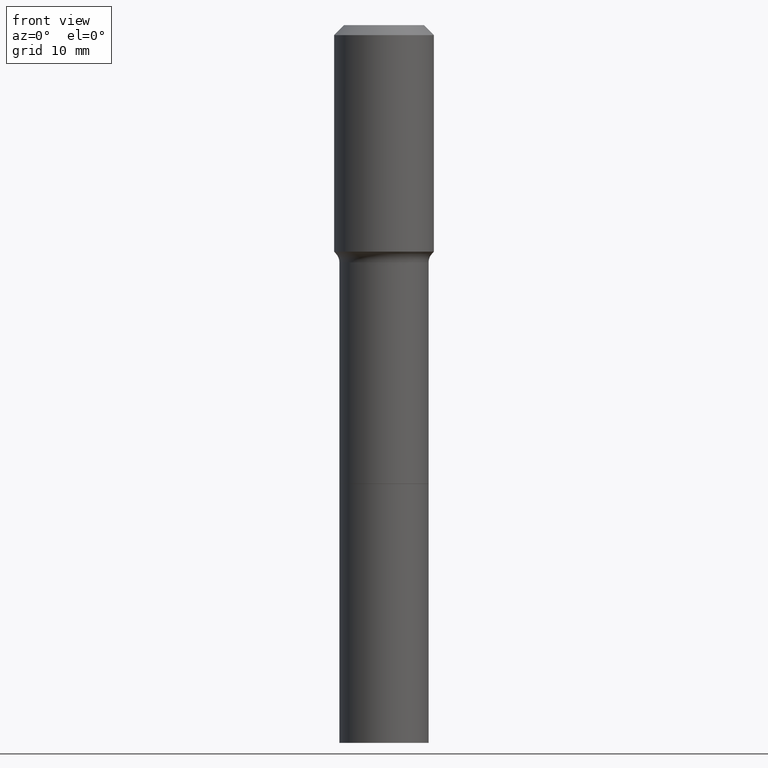
[diagram: clean part render]
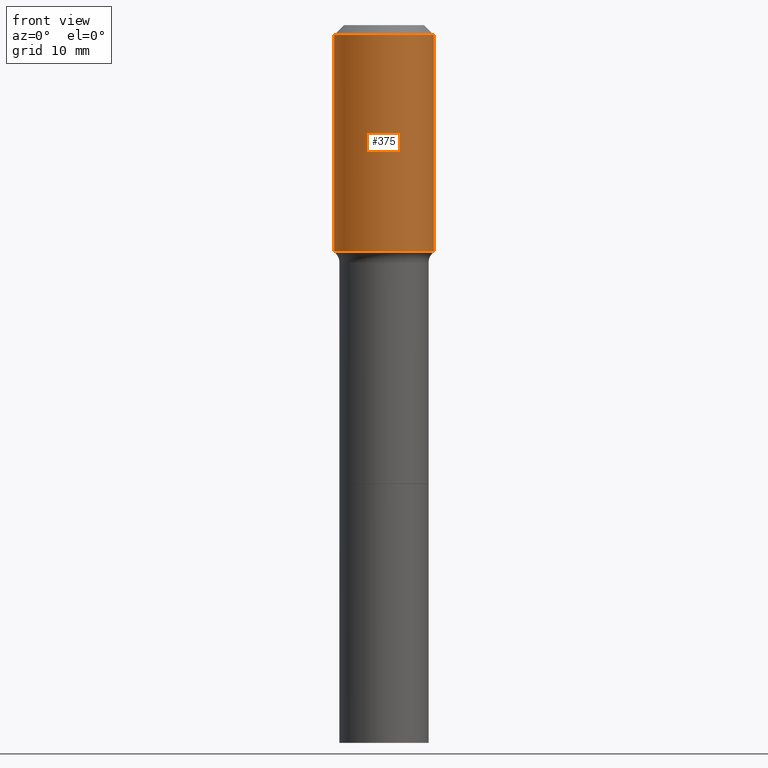
[diagram: same view with one face highlighted and labeled with its STEP entity id]
A machine part, front view. The second image highlights one B-rep face of the part: STEP entity #375.
In plain terms, the highlighted cylindrical surface (partial cylindrical patch) has radius 7.9997 mm, axis along (-0, 0, 1).
Its self-contained STEP definition (entity closure, byte-faithful):
#2 = VERTEX_POINT ( 'NONE', #342 ) ;
#12 = VECTOR ( 'NONE', #411, 39.37007874015748143 ) ;
#25 = EDGE_CURVE ( 'NONE', #469, #480, #136, .T. ) ;
#26 = DIRECTION ( 'NONE',  ( 1.000000000000000000, -6.982962677686265922E-15, 4.876176775795935232E-29 ) ) ;
#50 = EDGE_CURVE ( 'NONE', #320, #2, #455, .T. ) ;
#51 = LINE ( 'NONE', #405, #495 ) ;
#64 = EDGE_CURVE ( 'NONE', #320, #469, #51, .T. ) ;
#66 = FACE_OUTER_BOUND ( 'NONE', #357, .T. ) ;
#73 = DIRECTION ( 'NONE',  ( -2.445468806185136597E-29, 3.491481338843145583E-15, 1.000000000000000000 ) ) ;
#81 = ORIENTED_EDGE ( 'NONE', *, *, #50, .T. ) ;
#126 = LINE ( 'NONE', #489, #12 ) ;
#131 = CARTESIAN_POINT ( 'NONE',  ( -0.3149500000000002298, -2.751292104515327607E-15, -1.428948336422972032 ) ) ;
#136 = CIRCLE ( 'NONE', #188, 0.3149500000000000632 ) ;
#159 = ORIENTED_EDGE ( 'NONE', *, *, #25, .F. ) ;
#180 = CARTESIAN_POINT ( 'NONE',  ( 0.3149500000000000632, -2.419212504871021303E-15, -0.06299000000000040678 ) ) ;
#188 = AXIS2_PLACEMENT_3D ( 'NONE', #340, #73, #386 ) ;
#201 = DIRECTION ( 'NONE',  ( 1.000000000000000000, -6.982962677686268288E-15, 0.000000000000000000 ) ) ;
#203 = AXIS2_PLACEMENT_3D ( 'NONE', #479, #285, #201 ) ;
#247 = DIRECTION ( 'NONE',  ( -2.445468806185136877E-29, 3.491481338843145188E-15, 1.000000000000000000 ) ) ;
#285 = DIRECTION ( 'NONE',  ( -2.445468806185136597E-29, 3.491481338843145583E-15, 1.000000000000000000 ) ) ;
#301 = ORIENTED_EDGE ( 'NONE', *, *, #319, .T. ) ;
#302 = CARTESIAN_POINT ( 'NONE',  ( -0.3149500000000000632, -3.666830838863111328E-16, -0.06299000000000040678 ) ) ;
#307 = ORIENTED_EDGE ( 'NONE', *, *, #64, .F. ) ;
#319 = EDGE_CURVE ( 'NONE', #2, #480, #126, .T. ) ;
#320 = VERTEX_POINT ( 'NONE', #131 ) ;
#340 = CARTESIAN_POINT ( 'NONE',  ( 1.540400801016027380E-30, -2.199284095337311367E-16, -0.06299000000000040678 ) ) ;
#342 = CARTESIAN_POINT ( 'NONE',  ( 0.3149500000000002298, -7.188430546129055434E-15, -1.428948336422972032 ) ) ;
#357 = EDGE_LOOP ( 'NONE', ( #307, #81, #301, #159 ) ) ;
#373 = CYLINDRICAL_SURFACE ( 'NONE', #505, 0.3149500000000001743 ) ;
#375 = ADVANCED_FACE ( 'NONE', ( #66 ), #373, .T. ) ;
#385 = CARTESIAN_POINT ( 'NONE',  ( 0.000000000000000000, 0.000000000000000000, 0.000000000000000000 ) ) ;
#386 = DIRECTION ( 'NONE',  ( 1.000000000000000000, -6.982962677686266711E-15, 0.000000000000000000 ) ) ;
#405 = CARTESIAN_POINT ( 'NONE',  ( -0.3149500000000001743, 2.237854346276436774E-15, -1.549218606675783237E-29 ) ) ;
#411 = DIRECTION ( 'NONE',  ( -2.445468806185136877E-29, 3.491481338843145188E-15, 1.000000000000000000 ) ) ;
#455 = CIRCLE ( 'NONE', #203, 0.3149500000000002298 ) ;
#469 = VERTEX_POINT ( 'NONE', #302 ) ;
#479 = CARTESIAN_POINT ( 'NONE',  ( 3.494448582372522551E-29, -4.989146450791763986E-15, -1.428948336422972032 ) ) ;
#480 = VERTEX_POINT ( 'NONE', #180 ) ;
#489 = CARTESIAN_POINT ( 'NONE',  ( 0.3149500000000001743, -2.199284095337290660E-15, 1.535751875536930690E-29 ) ) ;
#495 = VECTOR ( 'NONE', #247, 39.37007874015748143 ) ;
#498 = DIRECTION ( 'NONE',  ( -2.445468806185136597E-29, 3.491481338843145583E-15, 1.000000000000000000 ) ) ;
#505 = AXIS2_PLACEMENT_3D ( 'NONE', #385, #498, #26 ) ;